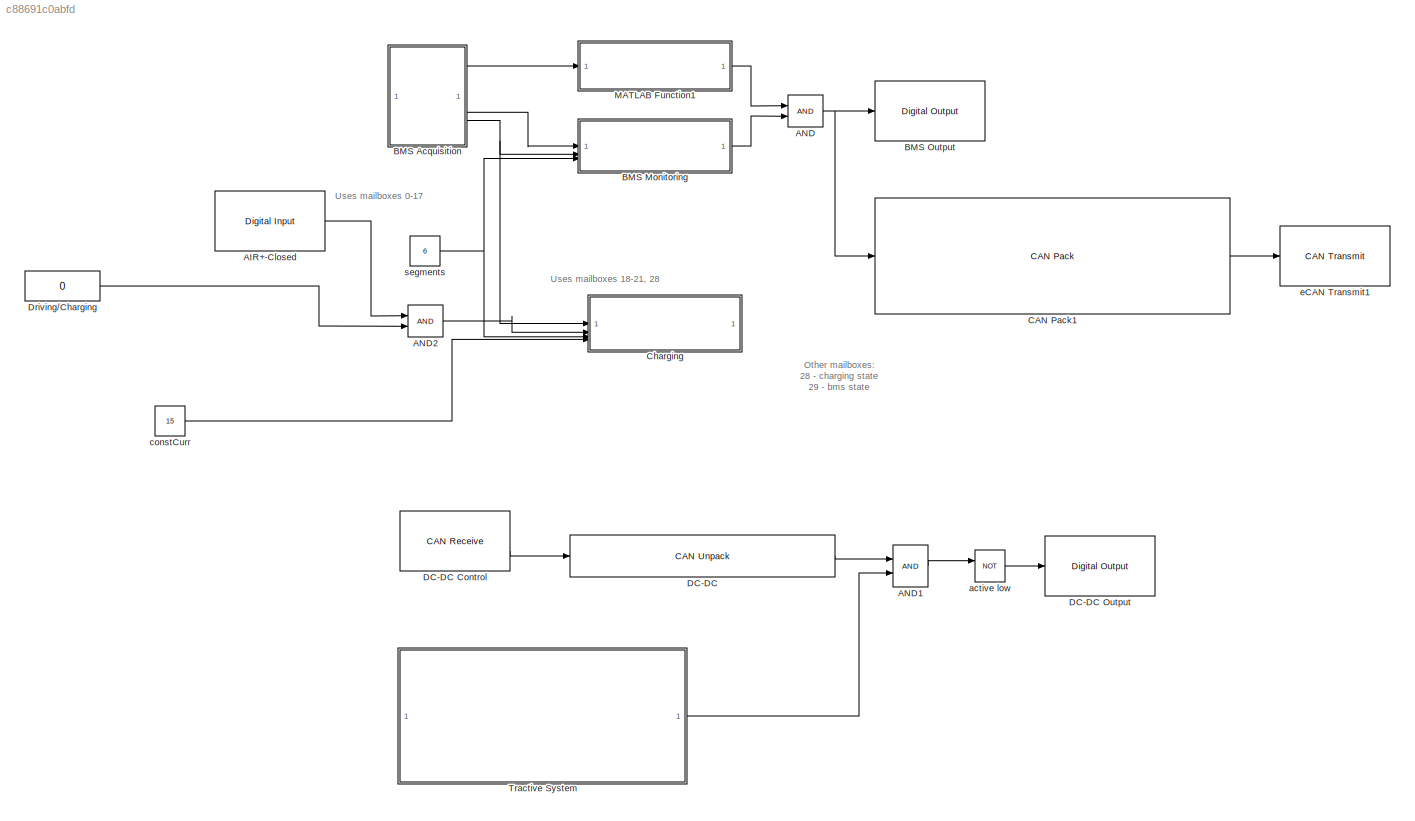
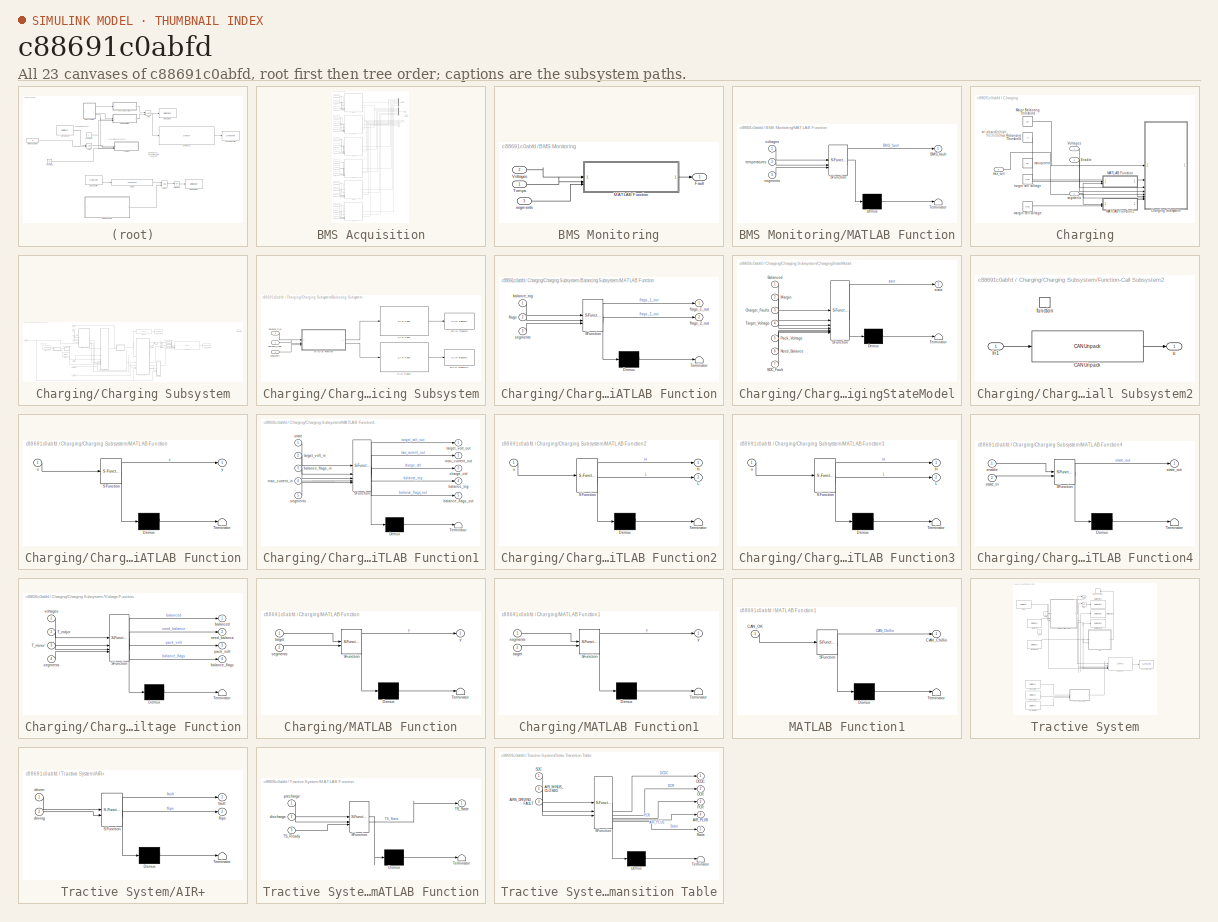
[diagram: thumbnail index - all 23 canvases of the model, root first then tree order]
MODEL slx_c88691c0abfd
KIND model
CONFIG AbsTol = auto
CONFIG EnableMultiTasking = off
CONFIG FixedStep = auto
CONFIG MaxStep = auto
CONFIG MinStep = auto
CONFIG RelTol = 1e-3
CONFIG SampleTimeConstraint = Unconstrained
CONFIG SolverName = FixedStepAuto
CONFIG StartTime = 0.0
CONFIG StopTime = 10.0
BLOCK [Reference] AIR+-Closed  REF=c2837xDlib/Digital Input
  SourceBlock = c2837xDlib/Digital Input
  SourceType = F2837x GPIO Digital Input
  UserDataPersistent = on
BLOCK [Logic] AND
  AllPortsSameDT = off
  IconShape = distinctive
  OutDataTypeStr = boolean
BLOCK [Logic] AND1
  AllPortsSameDT = off
  IconShape = distinctive
  OutDataTypeStr = boolean
BLOCK [Logic] AND2
  AllPortsSameDT = off
  IconShape = distinctive
  OutDataTypeStr = boolean
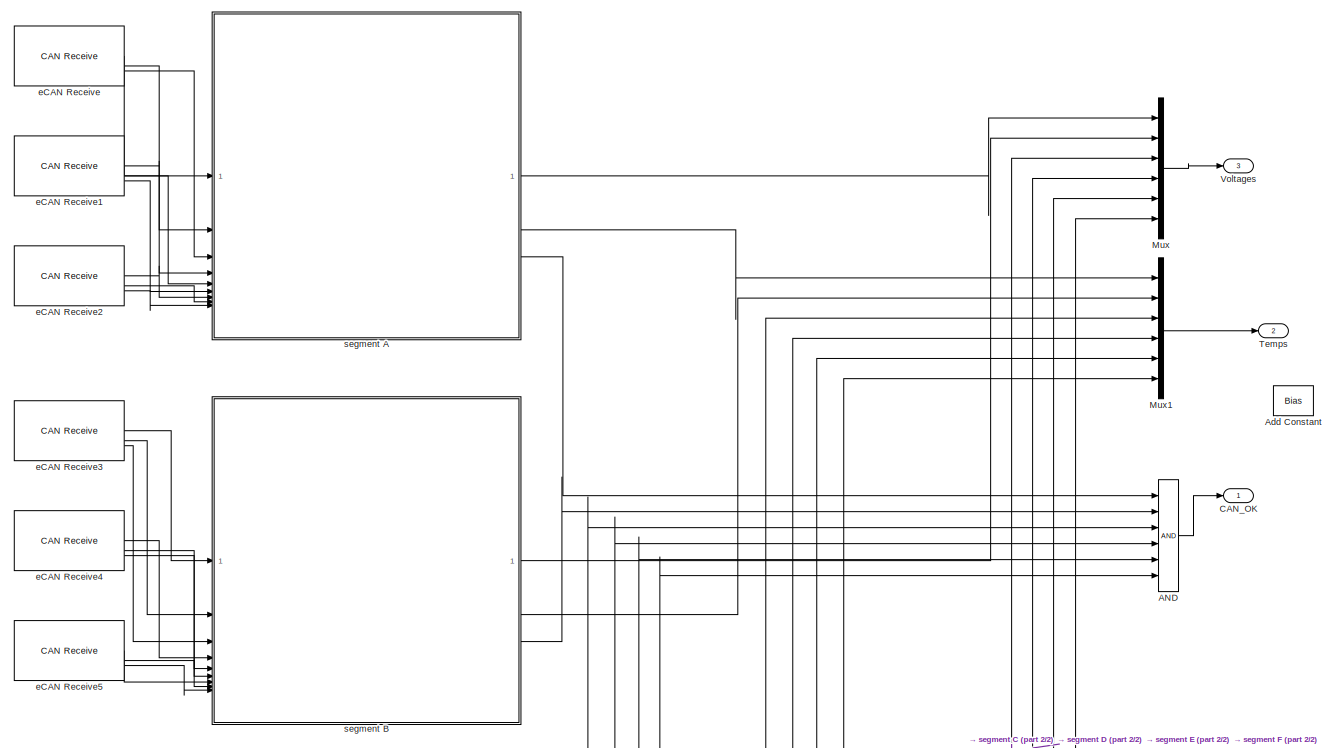
[diagram: BMS Acquisition - part 1/2, full width, top band]
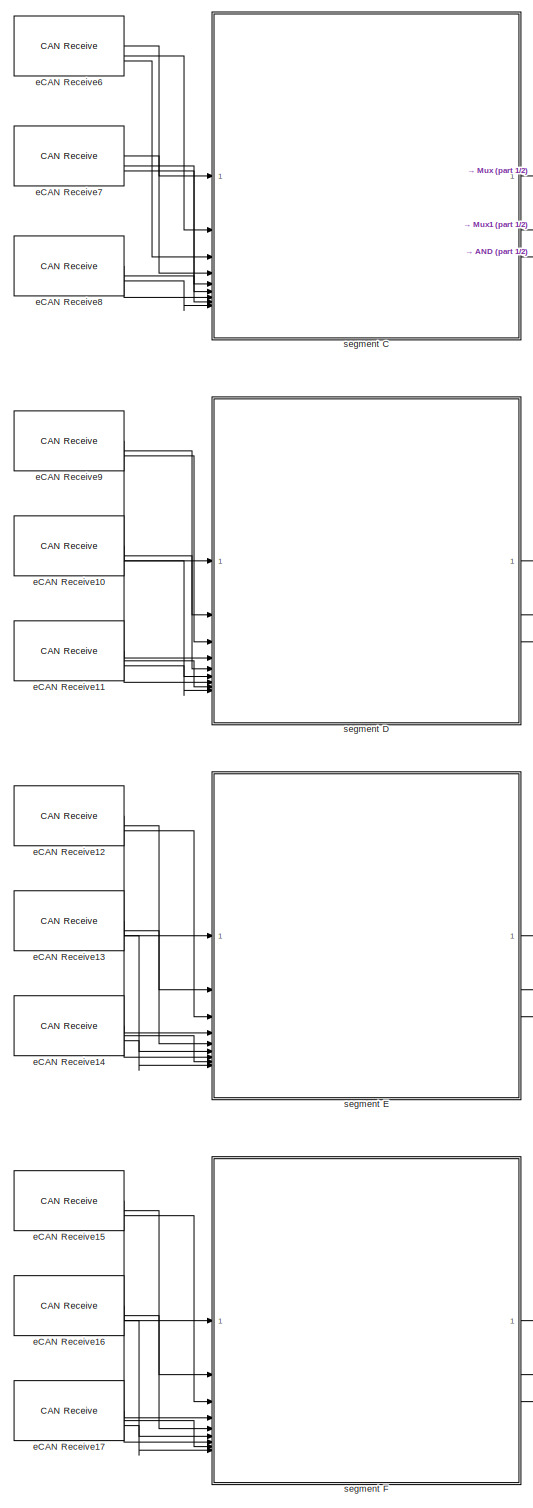
[diagram: BMS Acquisition - part 2/2, bottom left region]
BLOCK [SubSystem] BMS Acquisition
BLOCK [Outport] BMS Acquisition/ CAN_OK
BLOCK [Logic] BMS Acquisition/AND
  AllPortsSameDT = off
  IconShape = distinctive
  Inputs = 6
  OutDataTypeStr = boolean
BLOCK [Bias] BMS Acquisition/Add Constant
  Bias = [-0.25; -0.25; -0.25; -1; -0.5; -0.25; -0.5; -0.25; -0.75; -0.5; -0.5; 0; 2.25; 2.25; 2.25; 2.25; 2.25; 2.5; 2.25; 2.5; -1.25; 2.5; 2.25; 2.25; 0.5; 0.5; 0.75; 0.5; 0.75; 1.25; 0.75; 0.5; -1.25; 0.75; 0.75; 0.75; 1.75; 2.5; 2.75; 2.25; 2.5; 2.5; 2.25; 1.75; -2.5; 0; 2.5; 2.75; 1.5; 1.25; 1.25; 0.75; 1.25; 1.25; 1.25; 1.5; -0.75; 1.25; 1.25; 1.25; -0.25; 0; 0; 0; -0.25; -0.5; -0.5; -0.25; -0.75; -0...<+17ch>
  Commented = through
  SaturateOnIntegerOverflow = off
BLOCK [Mux] BMS Acquisition/Mux
  DisplayOption = bar
  Inputs = 6
BLOCK [Mux] BMS Acquisition/Mux1
  DisplayOption = bar
  Inputs = 6
BLOCK [Outport] BMS Acquisition/Temps
  Port = 2
BLOCK [Outport] BMS Acquisition/Voltages
  Port = 3
BLOCK [Reference] BMS Acquisition/eCAN Receive  REF=c280xlib/CAN Receive
  AttributesFormatString = ID: %<messageID>, MB: %<mailboxNo>
  SourceBlock = c280xlib/CAN Receive
  SourceType = C28x CAN Receive
BLOCK [Reference] BMS Acquisition/eCAN Receive1  REF=c280xlib/CAN Receive
  AttributesFormatString = ID: %<messageID>, MB: %<mailboxNo>
  SourceBlock = c280xlib/CAN Receive
  SourceType = C28x CAN Receive
BLOCK [Reference] BMS Acquisition/eCAN Receive10  REF=c280xlib/CAN Receive
  AttributesFormatString = ID: %<messageID>, MB: %<mailboxNo>
  SourceBlock = c280xlib/CAN Receive
  SourceType = C28x CAN Receive
BLOCK [Reference] BMS Acquisition/eCAN Receive11  REF=c280xlib/CAN Receive
  AttributesFormatString = ID: %<messageID>, MB: %<mailboxNo>
  SourceBlock = c280xlib/CAN Receive
  SourceType = C28x CAN Receive
BLOCK [Reference] BMS Acquisition/eCAN Receive12  REF=c280xlib/CAN Receive
  AttributesFormatString = ID: %<messageID>, MB: %<mailboxNo>
  SourceBlock = c280xlib/CAN Receive
  SourceType = C28x CAN Receive
BLOCK [Reference] BMS Acquisition/eCAN Receive13  REF=c280xlib/CAN Receive
  AttributesFormatString = ID: %<messageID>, MB: %<mailboxNo>
  SourceBlock = c280xlib/CAN Receive
  SourceType = C28x CAN Receive
BLOCK [Reference] BMS Acquisition/eCAN Receive14  REF=c280xlib/CAN Receive
  AttributesFormatString = ID: %<messageID>, MB: %<mailboxNo>
  SourceBlock = c280xlib/CAN Receive
  SourceType = C28x CAN Receive
BLOCK [Reference] BMS Acquisition/eCAN Receive15  REF=c280xlib/CAN Receive
  AttributesFormatString = ID: %<messageID>, MB: %<mailboxNo>
  SourceBlock = c280xlib/CAN Receive
  SourceType = C28x CAN Receive
BLOCK [Reference] BMS Acquisition/eCAN Receive16  REF=c280xlib/CAN Receive
  AttributesFormatString = ID: %<messageID>, MB: %<mailboxNo>
  SourceBlock = c280xlib/CAN Receive
  SourceType = C28x CAN Receive
BLOCK [Reference] BMS Acquisition/eCAN Receive17  REF=c280xlib/CAN Receive
  AttributesFormatString = ID: %<messageID>, MB: %<mailboxNo>
  SourceBlock = c280xlib/CAN Receive
  SourceType = C28x CAN Receive
BLOCK [Reference] BMS Acquisition/eCAN Receive2  REF=c280xlib/CAN Receive
  AttributesFormatString = ID: %<messageID>, MB: %<mailboxNo>
  SourceBlock = c280xlib/CAN Receive
  SourceType = C28x CAN Receive
BLOCK [Reference] BMS Acquisition/eCAN Receive3  REF=c280xlib/CAN Receive
  AttributesFormatString = ID: %<messageID>, MB: %<mailboxNo>
  SourceBlock = c280xlib/CAN Receive
  SourceType = C28x CAN Receive
BLOCK [Reference] BMS Acquisition/eCAN Receive4  REF=c280xlib/CAN Receive
  AttributesFormatString = ID: %<messageID>, MB: %<mailboxNo>
  SourceBlock = c280xlib/CAN Receive
  SourceType = C28x CAN Receive
BLOCK [Reference] BMS Acquisition/eCAN Receive5  REF=c280xlib/CAN Receive
  AttributesFormatString = ID: %<messageID>, MB: %<mailboxNo>
  SourceBlock = c280xlib/CAN Receive
  SourceType = C28x CAN Receive
BLOCK [Reference] BMS Acquisition/eCAN Receive6  REF=c280xlib/CAN Receive
  AttributesFormatString = ID: %<messageID>, MB: %<mailboxNo>
  SourceBlock = c280xlib/CAN Receive
  SourceType = C28x CAN Receive
BLOCK [Reference] BMS Acquisition/eCAN Receive7  REF=c280xlib/CAN Receive
  AttributesFormatString = ID: %<messageID>, MB: %<mailboxNo>
  SourceBlock = c280xlib/CAN Receive
  SourceType = C28x CAN Receive
BLOCK [Reference] BMS Acquisition/eCAN Receive8  REF=c280xlib/CAN Receive
  AttributesFormatString = ID: %<messageID>, MB: %<mailboxNo>
  SourceBlock = c280xlib/CAN Receive
  SourceType = C28x CAN Receive
BLOCK [Reference] BMS Acquisition/eCAN Receive9  REF=c280xlib/CAN Receive
  AttributesFormatString = ID: %<messageID>, MB: %<mailboxNo>
  SourceBlock = c280xlib/CAN Receive
  SourceType = C28x CAN Receive
BLOCK [SubSystem] BMS Acquisition/segment A
  ReferencedSubsystem = bms_segment
BLOCK [SubSystem] BMS Acquisition/segment B
  ReferencedSubsystem = bms_segment
BLOCK [SubSystem] BMS Acquisition/segment C
  ReferencedSubsystem = bms_segment
BLOCK [SubSystem] BMS Acquisition/segment D
  ReferencedSubsystem = bms_segment
BLOCK [SubSystem] BMS Acquisition/segment E
  ReferencedSubsystem = bms_segment
BLOCK [SubSystem] BMS Acquisition/segment F
  ReferencedSubsystem = bms_segment
BLOCK [SubSystem] BMS Monitoring
BLOCK [Outport] BMS Monitoring/Fault
BLOCK [SubSystem] BMS Monitoring/MATLAB Function
  ErrorFcn = Stateflow.Translate.translate
  PermitHierarchicalResolution = ExplicitOnly
  SFBlockType = MATLAB Function
  TreatAsAtomicUnit = on
BLOCK [Demux] BMS Monitoring/MATLAB Function/ Demux 
  Outputs = 1
BLOCK [S-Function] BMS Monitoring/MATLAB Function/ SFunction 
  EnableBusSupport = on
  FunctionName = sf_sfun
  PortCounts = [3 2]
  SFcnIsStateOwnerBlock = off
  SFunctionDeploymentMode = off
  Tag = Stateflow S-Function 9
BLOCK [Terminator] BMS Monitoring/MATLAB Function/ Terminator 
BLOCK [Outport] BMS Monitoring/MATLAB Function/BMS_fault
BLOCK [Inport] BMS Monitoring/MATLAB Function/segments
  Port = 3
BLOCK [Inport] BMS Monitoring/MATLAB Function/temperatures
  Port = 2
BLOCK [Inport] BMS Monitoring/MATLAB Function/voltages
BLOCK [Inport] BMS Monitoring/Temps
BLOCK [Inport] BMS Monitoring/Voltages
  Port = 2
BLOCK [Inport] BMS Monitoring/segments
  Port = 3
BLOCK [Reference] BMS Output  REF=c2837xDlib/Digital Output
  SourceBlock = c2837xDlib/Digital Output
  SourceType = F2837x GPIO Digital Output
  UserDataPersistent = on
BLOCK [Reference] CAN Pack1  REF=canmsglib/CAN Pack
  SourceBlock = canmsglib/CAN Pack
  SourceType = CAN Pack
BLOCK [SubSystem] Charging
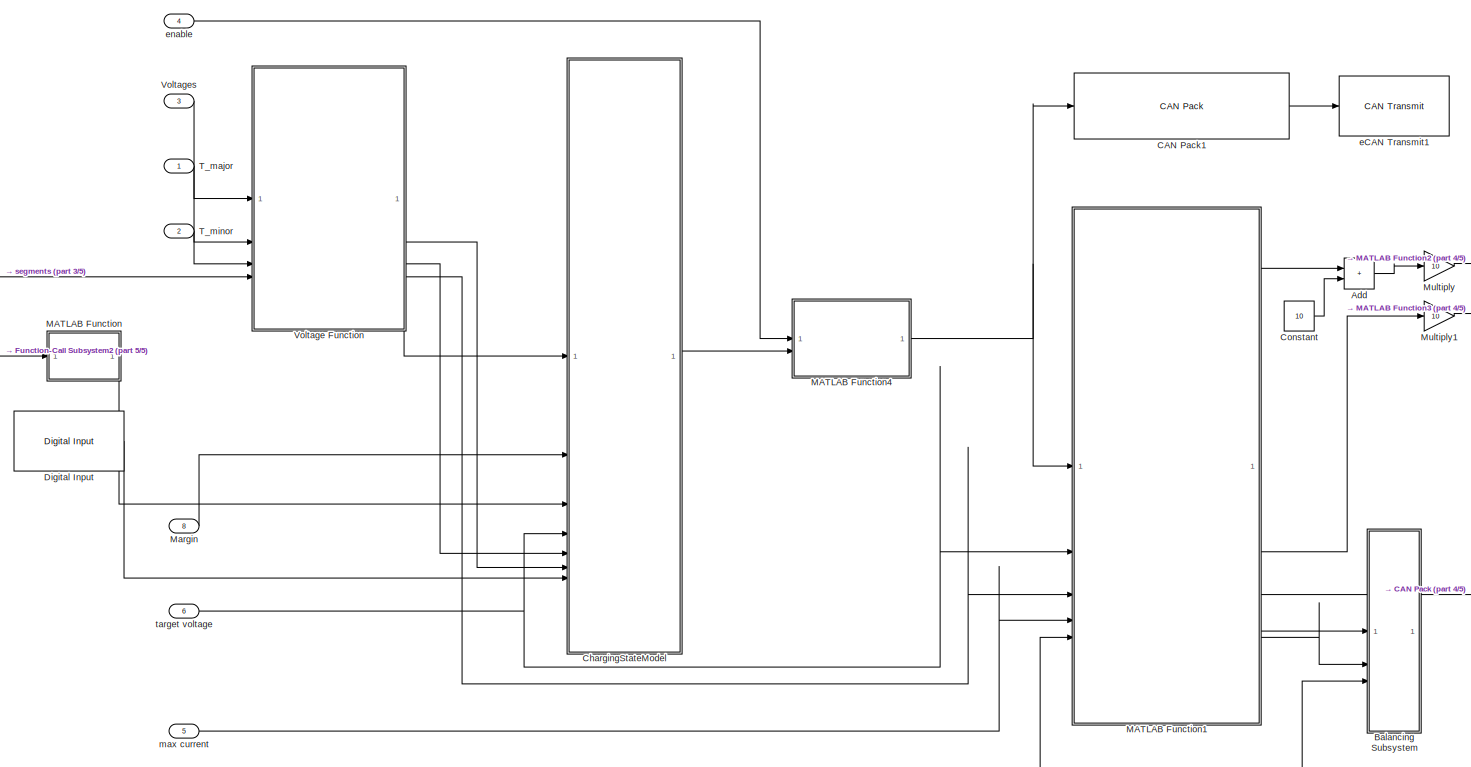
[diagram: Charging/Charging Subsystem - part 1/5, center side, full height]
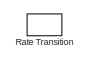
[diagram: Charging/Charging Subsystem - part 2/5, top right region]
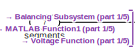
[diagram: Charging/Charging Subsystem - part 3/5, top left region]
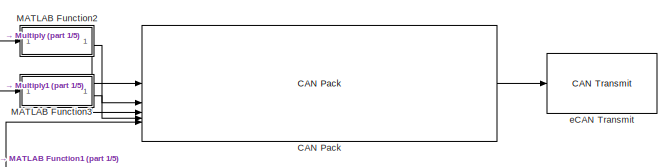
[diagram: Charging/Charging Subsystem - part 4/5, middle right region]
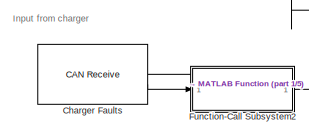
[diagram: Charging/Charging Subsystem - part 5/5, middle left region]
BLOCK [SubSystem] Charging/Charging Subsystem
BLOCK [Sum] Charging/Charging Subsystem/Add
  IconShape = rectangular
BLOCK [SubSystem] Charging/Charging Subsystem/Balancing Subsystem
  TreatAsAtomicUnit = on
BLOCK [Reference] Charging/Charging Subsystem/Balancing Subsystem/CAN Pack  REF=canmsglib/CAN Pack
  LibrarySourceBlock = c2000lib/Target Communication/CAN Pack
  SourceBlock = canmsglib/CAN Pack
  SourceType = CAN Pack
BLOCK [Reference] Charging/Charging Subsystem/Balancing Subsystem/CAN Pack1  REF=canmsglib/CAN Pack
  LibrarySourceBlock = c2000lib/Target Communication/CAN Pack
  SourceBlock = canmsglib/CAN Pack
  SourceType = CAN Pack
BLOCK [SubSystem] Charging/Charging Subsystem/Balancing Subsystem/MATLAB Function
  ErrorFcn = Stateflow.Translate.translate
  LibrarySourceBlock = simulink/User-Defined\nFunctions/MATLAB Function
  PermitHierarchicalResolution = ExplicitOnly
  SFBlockType = MATLAB Function
  TreatAsAtomicUnit = on
BLOCK [Demux] Charging/Charging Subsystem/Balancing Subsystem/MATLAB Function/ Demux 
  Outputs = 1
BLOCK [S-Function] Charging/Charging Subsystem/Balancing Subsystem/MATLAB Function/ SFunction 
  EnableBusSupport = on
  FunctionName = sf_sfun
  PortCounts = [3 3]
  SFcnIsStateOwnerBlock = off
  SFunctionDeploymentMode = off
  Tag = Stateflow S-Function 32
BLOCK [Terminator] Charging/Charging Subsystem/Balancing Subsystem/MATLAB Function/ Terminator 
BLOCK [Inport] Charging/Charging Subsystem/Balancing Subsystem/MATLAB Function/balance_trig
BLOCK [Inport] Charging/Charging Subsystem/Balancing Subsystem/MATLAB Function/flags
  Port = 2
BLOCK [Outport] Charging/Charging Subsystem/Balancing Subsystem/MATLAB Function/flags_1_out
BLOCK [Outport] Charging/Charging Subsystem/Balancing Subsystem/MATLAB Function/flags_2_out
  Port = 2
BLOCK [Inport] Charging/Charging Subsystem/Balancing Subsystem/MATLAB Function/segments
  Port = 3
BLOCK [Inport] Charging/Charging Subsystem/Balancing Subsystem/balance_flags
  Port = 2
BLOCK [Inport] Charging/Charging Subsystem/Balancing Subsystem/balance_trig
BLOCK [Reference] Charging/Charging Subsystem/Balancing Subsystem/eCAN Transmit  REF=c280xlib/CAN Transmit
  SourceBlock = c280xlib/CAN Transmit
  SourceType = C28x CAN Transmit
BLOCK [Reference] Charging/Charging Subsystem/Balancing Subsystem/eCAN Transmit1  REF=c280xlib/CAN Transmit
  SourceBlock = c280xlib/CAN Transmit
  SourceType = C28x CAN Transmit
BLOCK [Inport] Charging/Charging Subsystem/Balancing Subsystem/segments
  Port = 3
BLOCK [Reference] Charging/Charging Subsystem/CAN Pack  REF=canmsglib/CAN Pack
  SourceBlock = canmsglib/CAN Pack
  SourceType = CAN Pack
BLOCK [Reference] Charging/Charging Subsystem/CAN Pack1  REF=canmsglib/CAN Pack
  SourceBlock = canmsglib/CAN Pack
  SourceType = CAN Pack
BLOCK [Reference] Charging/Charging Subsystem/Charger Faults  REF=c280xlib/CAN Receive
  SourceBlock = c280xlib/CAN Receive
  SourceType = C28x CAN Receive
BLOCK [SubSystem] Charging/Charging Subsystem/ChargingStateModel
  ErrorFcn = Stateflow.Translate.translate
  PermitHierarchicalResolution = ExplicitOnly
  PortSchema = {"entries":[{"content":{"sides":[{"content":{"connectorIds":["In1","In6","In5","In3","In7","In2","In4"]},"type":"ConnectorPlacement.EquallySpacedRectSide","uuid":"e489c846-491e-4e82-9c5f-b669d7c96954"},{"content":{"connectorIds":["Out1"],"side":"RIGHT"},"type":"ConnectorPlacement.EquallySpacedRectSide","uuid":"cbb46da5-6eb6-44f9-baf3-a24ec6c96225"},{"content":{"connectorIds":[],"side":"TOP"},"type...<+420ch>
  RTWFcnNameOpts = Use subsystem name
  RTWFileNameOpts = Use subsystem name
  RTWSystemCode = Inline
  SFBlockType = Chart
  SystemSampleTime = 0.01
  TreatAsAtomicUnit = on
BLOCK [Demux] Charging/Charging Subsystem/ChargingStateModel/ Demux 
  Outputs = 1
BLOCK [S-Function] Charging/Charging Subsystem/ChargingStateModel/ SFunction 
  EnableBusSupport = on
  FunctionName = sf_sfun
  PortCounts = [7 2]
  SFcnIsStateOwnerBlock = off
  SFunctionDeploymentMode = off
  Tag = Stateflow S-Function 22
BLOCK [Terminator] Charging/Charging Subsystem/ChargingStateModel/ Terminator 
BLOCK [Inport] Charging/Charging Subsystem/ChargingStateModel/Balanced
BLOCK [Inport] Charging/Charging Subsystem/ChargingStateModel/Charger_Faults
  Port = 3
BLOCK [Inport] Charging/Charging Subsystem/ChargingStateModel/Margin
  Port = 2
BLOCK [Inport] Charging/Charging Subsystem/ChargingStateModel/Need_Balance
  Port = 6
BLOCK [Inport] Charging/Charging Subsystem/ChargingStateModel/Pack_Voltage
  Port = 5
BLOCK [Inport] Charging/Charging Subsystem/ChargingStateModel/SDC_Fault
  Port = 7
BLOCK [Inport] Charging/Charging Subsystem/ChargingStateModel/Target_Voltage
  Port = 4
BLOCK [Outport] Charging/Charging Subsystem/ChargingStateModel/state
BLOCK [Constant] Charging/Charging Subsystem/Constant
  Value = 10
BLOCK [Reference] Charging/Charging Subsystem/Digital Input  REF=c2837xDlib/Digital Input
  SourceBlock = c2837xDlib/Digital Input
  SourceType = F2837x GPIO Digital Input
  UserDataPersistent = on
BLOCK [SubSystem] Charging/Charging Subsystem/Function-Call Subsystem2
  TreatAsAtomicUnit = on
BLOCK [Reference] Charging/Charging Subsystem/Function-Call Subsystem2/CAN Unpack  REF=canmsglib/CAN Unpack
  SourceBlock = canmsglib/CAN Unpack
  SourceType = CAN Unpack
BLOCK [Inport] Charging/Charging Subsystem/Function-Call Subsystem2/In1
BLOCK [TriggerPort] Charging/Charging Subsystem/Function-Call Subsystem2/function
  StatesWhenEnabling = held
  TriggerType = function-call
  VariantControl = (inherit)
BLOCK [Outport] Charging/Charging Subsystem/Function-Call Subsystem2/u
BLOCK [SubSystem] Charging/Charging Subsystem/MATLAB Function
  ErrorFcn = Stateflow.Translate.translate
  PermitHierarchicalResolution = ExplicitOnly
  SFBlockType = MATLAB Function
  TreatAsAtomicUnit = on
BLOCK [Demux] Charging/Charging Subsystem/MATLAB Function/ Demux 
  Outputs = 1
BLOCK [S-Function] Charging/Charging Subsystem/MATLAB Function/ SFunction 
  EnableBusSupport = on
  FunctionName = sf_sfun
  PortCounts = [1 2]
  SFcnIsStateOwnerBlock = off
  SFunctionDeploymentMode = off
  Tag = Stateflow S-Function 26
BLOCK [Terminator] Charging/Charging Subsystem/MATLAB Function/ Terminator 
BLOCK [Inport] Charging/Charging Subsystem/MATLAB Function/u
BLOCK [Outport] Charging/Charging Subsystem/MATLAB Function/y
BLOCK [SubSystem] Charging/Charging Subsystem/MATLAB Function1
  ErrorFcn = Stateflow.Translate.translate
  LibrarySourceBlock = simulink/User-Defined\nFunctions/MATLAB Function
  PermitHierarchicalResolution = ExplicitOnly
  SFBlockType = MATLAB Function
  TreatAsAtomicUnit = on
BLOCK [Demux] Charging/Charging Subsystem/MATLAB Function1/ Demux 
  Outputs = 1
BLOCK [S-Function] Charging/Charging Subsystem/MATLAB Function1/ SFunction 
  EnableBusSupport = on
  FunctionName = sf_sfun
  PortCounts = [5 6]
  SFcnIsStateOwnerBlock = off
  SFunctionDeploymentMode = off
  Tag = Stateflow S-Function 29
BLOCK [Terminator] Charging/Charging Subsystem/MATLAB Function1/ Terminator 
BLOCK [Inport] Charging/Charging Subsystem/MATLAB Function1/balance_flags_in
  Port = 3
BLOCK [Outport] Charging/Charging Subsystem/MATLAB Function1/balance_flags_out
  Port = 5
BLOCK [Outport] Charging/Charging Subsystem/MATLAB Function1/balance_trig
  Port = 4
BLOCK [Outport] Charging/Charging Subsystem/MATLAB Function1/charge_ctrl
  Port = 3
BLOCK [Inport] Charging/Charging Subsystem/MATLAB Function1/max_current_in
  Port = 4
BLOCK [Outport] Charging/Charging Subsystem/MATLAB Function1/max_current_out
  Port = 2
BLOCK [Inport] Charging/Charging Subsystem/MATLAB Function1/segments
  Port = 5
BLOCK [Inport] Charging/Charging Subsystem/MATLAB Function1/state
BLOCK [Inport] Charging/Charging Subsystem/MATLAB Function1/target_volt_in
  Port = 2
BLOCK [Outport] Charging/Charging Subsystem/MATLAB Function1/target_volt_out
BLOCK [SubSystem] Charging/Charging Subsystem/MATLAB Function2
  ErrorFcn = Stateflow.Translate.translate
  PermitHierarchicalResolution = ExplicitOnly
  SFBlockType = MATLAB Function
  TreatAsAtomicUnit = on
BLOCK [Demux] Charging/Charging Subsystem/MATLAB Function2/ Demux 
  Outputs = 1
BLOCK [S-Function] Charging/Charging Subsystem/MATLAB Function2/ SFunction 
  EnableBusSupport = on
  FunctionName = sf_sfun
  PortCounts = [1 3]
  SFcnIsStateOwnerBlock = off
  SFunctionDeploymentMode = off
  Tag = Stateflow S-Function 30
BLOCK [Terminator] Charging/Charging Subsystem/MATLAB Function2/ Terminator 
BLOCK [Outport] Charging/Charging Subsystem/MATLAB Function2/H
BLOCK [Outport] Charging/Charging Subsystem/MATLAB Function2/L
  Port = 2
BLOCK [Inport] Charging/Charging Subsystem/MATLAB Function2/u
BLOCK [SubSystem] Charging/Charging Subsystem/MATLAB Function3
  ErrorFcn = Stateflow.Translate.translate
  PermitHierarchicalResolution = ExplicitOnly
  SFBlockType = MATLAB Function
  TreatAsAtomicUnit = on
BLOCK [Demux] Charging/Charging Subsystem/MATLAB Function3/ Demux 
  Outputs = 1
BLOCK [S-Function] Charging/Charging Subsystem/MATLAB Function3/ SFunction 
  EnableBusSupport = on
  FunctionName = sf_sfun
  PortCounts = [1 3]
  SFcnIsStateOwnerBlock = off
  SFunctionDeploymentMode = off
  Tag = Stateflow S-Function 31
BLOCK [Terminator] Charging/Charging Subsystem/MATLAB Function3/ Terminator 
BLOCK [Outport] Charging/Charging Subsystem/MATLAB Function3/H
BLOCK [Outport] Charging/Charging Subsystem/MATLAB Function3/L
  Port = 2
BLOCK [Inport] Charging/Charging Subsystem/MATLAB Function3/u
BLOCK [SubSystem] Charging/Charging Subsystem/MATLAB Function4
  ErrorFcn = Stateflow.Translate.translate
  LibrarySourceBlock = simulink/User-Defined\nFunctions/MATLAB Function
  PermitHierarchicalResolution = ExplicitOnly
  SFBlockType = MATLAB Function
  TreatAsAtomicUnit = on
BLOCK [Demux] Charging/Charging Subsystem/MATLAB Function4/ Demux 
  Outputs = 1
BLOCK [S-Function] Charging/Charging Subsystem/MATLAB Function4/ SFunction 
  EnableBusSupport = on
  FunctionName = sf_sfun
  PortCounts = [2 2]
  SFcnIsStateOwnerBlock = off
  SFunctionDeploymentMode = off
  Tag = Stateflow S-Function 24
BLOCK [Terminator] Charging/Charging Subsystem/MATLAB Function4/ Terminator 
BLOCK [Inport] Charging/Charging Subsystem/MATLAB Function4/enable
BLOCK [Inport] Charging/Charging Subsystem/MATLAB Function4/state_in
  Port = 2
BLOCK [Outport] Charging/Charging Subsystem/MATLAB Function4/state_out
BLOCK [Inport] Charging/Charging Subsystem/Margin
  Port = 8
BLOCK [Gain] Charging/Charging Subsystem/Multiply
  Gain = 10
BLOCK [Gain] Charging/Charging Subsystem/Multiply1
  Gain = 10
BLOCK [RateTransition] Charging/Charging Subsystem/Rate Transition
  Commented = on
  OutPortSampleTime = .5
BLOCK [Inport] Charging/Charging Subsystem/T_major
BLOCK [Inport] Charging/Charging Subsystem/T_minor
  Port = 2
BLOCK [SubSystem] Charging/Charging Subsystem/Voltage Function
  ErrorFcn = Stateflow.Translate.translate
  PermitHierarchicalResolution = ExplicitOnly
  SFBlockType = MATLAB Function
  TreatAsAtomicUnit = on
BLOCK [Demux] Charging/Charging Subsystem/Voltage Function/ Demux 
  Outputs = 1
BLOCK [S-Function] Charging/Charging Subsystem/Voltage Function/ SFunction 
  EnableBusSupport = on
  FunctionName = sf_sfun
  PortCounts = [4 5]
  SFcnIsStateOwnerBlock = off
  SFunctionDeploymentMode = off
  Tag = Stateflow S-Function 23
BLOCK [Terminator] Charging/Charging Subsystem/Voltage Function/ Terminator 
BLOCK [Inport] Charging/Charging Subsystem/Voltage Function/T_major
  Port = 2
BLOCK [Inport] Charging/Charging Subsystem/Voltage Function/T_minor
  Port = 3
BLOCK [Outport] Charging/Charging Subsystem/Voltage Function/balance_flags
  Port = 4
BLOCK [Outport] Charging/Charging Subsystem/Voltage Function/balanced
BLOCK [Outport] Charging/Charging Subsystem/Voltage Function/need_balance
  Port = 2
BLOCK [Outport] Charging/Charging Subsystem/Voltage Function/pack_volt
  Port = 3
BLOCK [Inport] Charging/Charging Subsystem/Voltage Function/segments
  Port = 4
BLOCK [Inport] Charging/Charging Subsystem/Voltage Function/voltages
BLOCK [Inport] Charging/Charging Subsystem/Voltages
  Port = 3
BLOCK [Reference] Charging/Charging Subsystem/eCAN Transmit  REF=c280xlib/CAN Transmit
  SourceBlock = c280xlib/CAN Transmit
  SourceType = C28x CAN Transmit
BLOCK [Reference] Charging/Charging Subsystem/eCAN Transmit1  REF=c280xlib/CAN Transmit
  SourceBlock = c280xlib/CAN Transmit
  SourceType = C28x CAN Transmit
BLOCK [Inport] Charging/Charging Subsystem/enable
  Port = 4
BLOCK [Inport] Charging/Charging Subsystem/max current
  Port = 5
BLOCK [Inport] Charging/Charging Subsystem/segments
  Port = 7
BLOCK [Inport] Charging/Charging Subsystem/target voltage
  Port = 6
BLOCK [Inport] Charging/Enable
  Port = 2
BLOCK [SubSystem] Charging/MATLAB Function
  ErrorFcn = Stateflow.Translate.translate
  LibrarySourceBlock = simulink/User-Defined\nFunctions/MATLAB Function
  PermitHierarchicalResolution = ExplicitOnly
  SFBlockType = MATLAB Function
  TreatAsAtomicUnit = on
BLOCK [Demux] Charging/MATLAB Function/ Demux 
  Outputs = 1
BLOCK [S-Function] Charging/MATLAB Function/ SFunction 
  EnableBusSupport = on
  FunctionName = sf_sfun
  PortCounts = [2 2]
  SFcnIsStateOwnerBlock = off
  SFunctionDeploymentMode = off
  Tag = Stateflow S-Function 27
BLOCK [Terminator] Charging/MATLAB Function/ Terminator 
BLOCK [Inport] Charging/MATLAB Function/segments
  Port = 2
BLOCK [Inport] Charging/MATLAB Function/target
BLOCK [Outport] Charging/MATLAB Function/y
BLOCK [SubSystem] Charging/MATLAB Function1
  ErrorFcn = Stateflow.Translate.translate
  LibrarySourceBlock = simulink/User-Defined\nFunctions/MATLAB Function
  PermitHierarchicalResolution = ExplicitOnly
  SFBlockType = MATLAB Function
  TreatAsAtomicUnit = on
BLOCK [Demux] Charging/MATLAB Function1/ Demux 
  Outputs = 1
BLOCK [S-Function] Charging/MATLAB Function1/ SFunction 
  EnableBusSupport = on
  FunctionName = sf_sfun
  PortCounts = [2 2]
  SFcnIsStateOwnerBlock = off
  SFunctionDeploymentMode = off
  Tag = Stateflow S-Function 28
BLOCK [Terminator] Charging/MATLAB Function1/ Terminator 
BLOCK [Inport] Charging/MATLAB Function1/segments
BLOCK [Inport] Charging/MATLAB Function1/target
  Port = 2
BLOCK [Outport] Charging/MATLAB Function1/y
BLOCK [Constant] Charging/Major Balancing Threshold
  Value = 10
BLOCK [Constant] Charging/Minor Balancing Threshold
  Value = .2
BLOCK [Inport] Charging/Voltages
BLOCK [Constant] Charging/margin cell voltage
  Value = 0.02
BLOCK [Constant] Charging/max current
  Commented = on
  Value = 10
BLOCK [Inport] Charging/max_curr
  Port = 4
BLOCK [Inport] Charging/segments
  Port = 3
BLOCK [Constant] Charging/target cell voltage
  Value = 4.25
BLOCK [Reference] DC-DC  REF=canmsglib/CAN Unpack
  SourceBlock = canmsglib/CAN Unpack
  SourceType = CAN Unpack
BLOCK [Reference] DC-DC Control  REF=c280xlib/CAN Receive
  SourceBlock = c280xlib/CAN Receive
  SourceType = C28x CAN Receive
BLOCK [Reference] DC-DC Output  REF=c2837xDlib/Digital Output
  SourceBlock = c2837xDlib/Digital Output
  SourceType = F2837x GPIO Digital Output
  UserDataPersistent = on
BLOCK [Constant] Driving//Charging
  AttributesFormatString = 0 -> Driving\n1 -> Charging
  Value = 0
BLOCK [SubSystem] MATLAB Function1
  ErrorFcn = Stateflow.Translate.translate
  LibrarySourceBlock = simulink/User-Defined\nFunctions/MATLAB Function
  PermitHierarchicalResolution = ExplicitOnly
  SFBlockType = MATLAB Function
  TreatAsAtomicUnit = on
BLOCK [Demux] MATLAB Function1/ Demux 
  Outputs = 1
BLOCK [S-Function] MATLAB Function1/ SFunction 
  EnableBusSupport = on
  FunctionName = sf_sfun
  PortCounts = [1 2]
  SFcnIsStateOwnerBlock = off
  SFunctionDeploymentMode = off
  Tag = Stateflow S-Function 25
BLOCK [Terminator] MATLAB Function1/ Terminator 
BLOCK [Outport] MATLAB Function1/CAN_Chillin
BLOCK [Inport] MATLAB Function1/CAN_OK
BLOCK [SubSystem] Tractive System
BLOCK [SubSystem] Tractive System/AIR+
  Commented = on
  ErrorFcn = Stateflow.Translate.translate
  PermitHierarchicalResolution = ExplicitOnly
  PortSchema = {"entries":[{"content":{"sides":[{"content":{"connectorIds":["In2","In1"]},"type":"ConnectorPlacement.EquallySpacedRectSide","uuid":"9dd53fd1-3ecf-4257-a5bf-55d9d7025cab"},{"content":{"connectorIds":["Out1","Out2"],"side":"RIGHT"},"type":"ConnectorPlacement.EquallySpacedRectSide","uuid":"25af85f6-47e3-4235-93a7-84041689babd"},{"content":{"side":"TOP"},"type":"ConnectorPlacement.EquallySpacedRectSi...<+235ch>
  SFBlockType = Chart
  TreatAsAtomicUnit = on
BLOCK [Reference] Tractive System/AIR+-Closed  REF=c2837xDlib/Digital Input
  SourceBlock = c2837xDlib/Digital Input
  SourceType = F2837x GPIO Digital Input
  UserDataPersistent = on
BLOCK [Demux] Tractive System/AIR+/ Demux 
  Outputs = 1
BLOCK [S-Function] Tractive System/AIR+/ SFunction 
  EnableBusSupport = off
  FunctionName = sf_sfun
  PortCounts = [2 3]
  SFcnIsStateOwnerBlock = off
  SFunctionDeploymentMode = off
  Tag = Stateflow S-Function 3
BLOCK [Terminator] Tractive System/AIR+/ Terminator 
BLOCK [Inport] Tractive System/AIR+/driven
BLOCK [Inport] Tractive System/AIR+/driving
  Port = 2
BLOCK [Outport] Tractive System/AIR+/fault
BLOCK [Outport] Tractive System/AIR+/flips
  Port = 2
BLOCK [Reference] Tractive System/AIR--Closed  REF=c2837xDlib/Digital Input
  SourceBlock = c2837xDlib/Digital Input
  SourceType = F2837x GPIO Digital Input
  UserDataPersistent = on
BLOCK [Reference] Tractive System/CAN Pack  REF=canmsglib/CAN Pack
  SourceBlock = canmsglib/CAN Pack
  SourceType = CAN Pack
BLOCK [Outport] Tractive System/DC-DC
BLOCK [Delay] Tractive System/Delay One Step
  Commented = on
  DelayLength = 1
  InputPortMap = u0
  NameLocation = top
BLOCK [Reference] Tractive System/Digital Output  REF=c2837xDlib/Digital Output
  SourceBlock = c2837xDlib/Digital Output
  SourceType = F2837x GPIO Digital Output
  UserDataPersistent = on
BLOCK [Reference] Tractive System/Digital Output1  REF=c2837xDlib/Digital Output
  SourceBlock = c2837xDlib/Digital Output
  SourceType = F2837x GPIO Digital Output
  UserDataPersistent = on
BLOCK [Reference] Tractive System/Digital Output2  REF=c2837xDlib/Digital Output
  SourceBlock = c2837xDlib/Digital Output
  SourceType = F2837x GPIO Digital Output
  UserDataPersistent = on
BLOCK [Reference] Tractive System/Discharge  REF=c2837xDlib/Digital Input
  SourceBlock = c2837xDlib/Digital Input
  SourceType = F2837x GPIO Digital Input
  UserDataPersistent = on
BLOCK [SubSystem] Tractive System/MATLAB Function
  ErrorFcn = Stateflow.Translate.translate
  PermitHierarchicalResolution = ExplicitOnly
  SFBlockType = MATLAB Function
  TreatAsAtomicUnit = on
BLOCK [Demux] Tractive System/MATLAB Function/ Demux 
  Outputs = 1
BLOCK [S-Function] Tractive System/MATLAB Function/ SFunction 
  EnableBusSupport = on
  FunctionName = sf_sfun
  PortCounts = [3 2]
  SFcnIsStateOwnerBlock = off
  SFunctionDeploymentMode = off
  Tag = Stateflow S-Function 12
BLOCK [Terminator] Tractive System/MATLAB Function/ Terminator 
BLOCK [Inport] Tractive System/MATLAB Function/TS_Ready
  Port = 3
BLOCK [Outport] Tractive System/MATLAB Function/TS_State
BLOCK [Inport] Tractive System/MATLAB Function/discharge
  Port = 2
BLOCK [Inport] Tractive System/MATLAB Function/precharge
BLOCK [Logic] Tractive System/NOT
  AllPortsSameDT = off
  IconShape = distinctive
  Operator = NOT
  OutDataTypeStr = boolean
BLOCK [Constant] Tractive System/One
  Commented = on
  OutDataTypeStr = Inherit: Inherit via back propagation
BLOCK [Reference] Tractive System/Precharge  REF=c2837xDlib/Digital Input
  SourceBlock = c2837xDlib/Digital Input
  SourceType = F2837x GPIO Digital Input
  UserDataPersistent = on
BLOCK [Reference] Tractive System/SDC  REF=c2837xDlib/Digital Input
  SourceBlock = c2837xDlib/Digital Input
  SourceType = F2837x GPIO Digital Input
  UserDataPersistent = on
BLOCK [SubSystem] Tractive System/State Transition Table
  ErrorFcn = Stateflow.Translate.translate
  PermitHierarchicalResolution = ExplicitOnly
  PortSchema = {"entries":[{"content":{"sides":[{"content":{"connectorIds":["In1","In3","In2"]},"type":"ConnectorPlacement.EquallySpacedRectSide","uuid":"588cd4c7-dba0-48db-9820-dba2fd8491b3"},{"content":{"connectorIds":["Out1","Out2","Out3","Out4","Out5"],"side":"RIGHT"},"type":"ConnectorPlacement.EquallySpacedRectSide","uuid":"afcbba97-d13d-4a71-ab90-836a8403ff14"},{"content":{"side":"TOP"},"type":"ConnectorPl...<+262ch>
  SFBlockType = State Transition Table
  TreatAsAtomicUnit = on
BLOCK [Demux] Tractive System/State Transition Table/ Demux 
  Outputs = 1
BLOCK [S-Function] Tractive System/State Transition Table/ SFunction 
  EnableBusSupport = on
  FunctionName = sf_sfun
  PortCounts = [3 6]
  SFcnIsStateOwnerBlock = off
  SFunctionDeploymentMode = off
  Tag = Stateflow S-Function 4
BLOCK [Terminator] Tractive System/State Transition Table/ Terminator 
BLOCK [Inport] Tractive System/State Transition Table/AIRS_DRIVING_FAULT
  Port = 3
BLOCK [Inport] Tractive System/State Transition Table/AIR_MINUS_CLOSED
  Port = 2
BLOCK [Outport] Tractive System/State Transition Table/AIR_PLUS
  Port = 4
BLOCK [Outport] Tractive System/State Transition Table/DCDC
BLOCK [Outport] Tractive System/State Transition Table/DCR
  Port = 2
BLOCK [Outport] Tractive System/State Transition Table/PCR
  Port = 3
BLOCK [Inport] Tractive System/State Transition Table/SDC
BLOCK [Outport] Tractive System/State Transition Table/State
  Port = 5
BLOCK [Reference] Tractive System/TS_Ready  REF=c2837xDlib/Digital Input
  SourceBlock = c2837xDlib/Digital Input
  SourceType = F2837x GPIO Digital Input
  UserDataPersistent = on
BLOCK [Constant] Tractive System/Zero
  OutDataTypeStr = Inherit: Inherit via back propagation
  Value = 0
BLOCK [Reference] Tractive System/eCAN Transmit  REF=c280xlib/CAN Transmit
  SourceBlock = c280xlib/CAN Transmit
  SourceType = C28x CAN Transmit
BLOCK [Logic] active low
  AllPortsSameDT = off
  IconShape = distinctive
  Operator = NOT
  OutDataTypeStr = boolean
BLOCK [Constant] constCurr
  Value = 15
BLOCK [Reference] eCAN Transmit1  REF=c280xlib/CAN Transmit
  SourceBlock = c280xlib/CAN Transmit
  SourceType = C28x CAN Transmit
BLOCK [Constant] segments
  Value = 6
ANNOTATION (root): Other mailboxes: 28 - charging state 29 - bms state
ANNOTATION (root): Uses mailboxes 0-17
ANNOTATION (root): Uses mailboxes 18-21, 28
ANNOTATION Charging: set absurdly high 9/23/2024
ANNOTATION Charging/Charging Subsystem: Input from charger
ANNOTATION Tractive System: normally closed
LINE AIR+-Closed:1 -> AND2:1
LINE AND1:1 -> active low:1
LINE AND2:1 -> Charging:2
NET AND:1 -> BMS Output:1, CAN Pack1:1
LINE BMS Acquisition/AND:1 -> BMS Acquisition/ CAN_OK:1
LINE BMS Acquisition/Mux1:1 -> BMS Acquisition/Temps:1
LINE BMS Acquisition/Mux:1 -> BMS Acquisition/Voltages:1
LINE BMS Acquisition/eCAN Receive10:1 -> BMS Acquisition/segment D:4
LINE BMS Acquisition/eCAN Receive10:2 -> BMS Acquisition/segment D:5
LINE BMS Acquisition/eCAN Receive10:3 -> BMS Acquisition/segment D:6
LINE BMS Acquisition/eCAN Receive11:1 -> BMS Acquisition/segment D:7
LINE BMS Acquisition/eCAN Receive11:2 -> BMS Acquisition/segment D:8
LINE BMS Acquisition/eCAN Receive11:3 -> BMS Acquisition/segment D:9
LINE BMS Acquisition/eCAN Receive12:1 -> BMS Acquisition/segment E:1
LINE BMS Acquisition/eCAN Receive12:2 -> BMS Acquisition/segment E:2
LINE BMS Acquisition/eCAN Receive12:3 -> BMS Acquisition/segment E:3
LINE BMS Acquisition/eCAN Receive13:1 -> BMS Acquisition/segment E:4
LINE BMS Acquisition/eCAN Receive13:2 -> BMS Acquisition/segment E:5
LINE BMS Acquisition/eCAN Receive13:3 -> BMS Acquisition/segment E:6
LINE BMS Acquisition/eCAN Receive14:1 -> BMS Acquisition/segment E:7
LINE BMS Acquisition/eCAN Receive14:2 -> BMS Acquisition/segment E:8
LINE BMS Acquisition/eCAN Receive14:3 -> BMS Acquisition/segment E:9
LINE BMS Acquisition/eCAN Receive15:1 -> BMS Acquisition/segment F:1
LINE BMS Acquisition/eCAN Receive15:2 -> BMS Acquisition/segment F:2
LINE BMS Acquisition/eCAN Receive15:3 -> BMS Acquisition/segment F:3
LINE BMS Acquisition/eCAN Receive16:1 -> BMS Acquisition/segment F:4
LINE BMS Acquisition/eCAN Receive16:2 -> BMS Acquisition/segment F:5
LINE BMS Acquisition/eCAN Receive16:3 -> BMS Acquisition/segment F:6
LINE BMS Acquisition/eCAN Receive17:1 -> BMS Acquisition/segment F:7
LINE BMS Acquisition/eCAN Receive17:2 -> BMS Acquisition/segment F:8
LINE BMS Acquisition/eCAN Receive17:3 -> BMS Acquisition/segment F:9
LINE BMS Acquisition/eCAN Receive1:1 -> BMS Acquisition/segment A:4
LINE BMS Acquisition/eCAN Receive1:2 -> BMS Acquisition/segment A:5
LINE BMS Acquisition/eCAN Receive1:3 -> BMS Acquisition/segment A:6
LINE BMS Acquisition/eCAN Receive2:1 -> BMS Acquisition/segment A:7
LINE BMS Acquisition/eCAN Receive2:2 -> BMS Acquisition/segment A:8
LINE BMS Acquisition/eCAN Receive2:3 -> BMS Acquisition/segment A:9
LINE BMS Acquisition/eCAN Receive3:1 -> BMS Acquisition/segment B:1
LINE BMS Acquisition/eCAN Receive3:2 -> BMS Acquisition/segment B:2
LINE BMS Acquisition/eCAN Receive3:3 -> BMS Acquisition/segment B:3
LINE BMS Acquisition/eCAN Receive4:1 -> BMS Acquisition/segment B:4
LINE BMS Acquisition/eCAN Receive4:2 -> BMS Acquisition/segment B:5
LINE BMS Acquisition/eCAN Receive4:3 -> BMS Acquisition/segment B:6
LINE BMS Acquisition/eCAN Receive5:1 -> BMS Acquisition/segment B:7
LINE BMS Acquisition/eCAN Receive5:2 -> BMS Acquisition/segment B:8
LINE BMS Acquisition/eCAN Receive5:3 -> BMS Acquisition/segment B:9
LINE BMS Acquisition/eCAN Receive6:1 -> BMS Acquisition/segment C:1
LINE BMS Acquisition/eCAN Receive6:2 -> BMS Acquisition/segment C:2
LINE BMS Acquisition/eCAN Receive6:3 -> BMS Acquisition/segment C:3
LINE BMS Acquisition/eCAN Receive7:1 -> BMS Acquisition/segment C:4
LINE BMS Acquisition/eCAN Receive7:2 -> BMS Acquisition/segment C:5
LINE BMS Acquisition/eCAN Receive7:3 -> BMS Acquisition/segment C:6
LINE BMS Acquisition/eCAN Receive8:1 -> BMS Acquisition/segment C:7
LINE BMS Acquisition/eCAN Receive8:2 -> BMS Acquisition/segment C:8
LINE BMS Acquisition/eCAN Receive8:3 -> BMS Acquisition/segment C:9
LINE BMS Acquisition/eCAN Receive9:1 -> BMS Acquisition/segment D:1
LINE BMS Acquisition/eCAN Receive9:2 -> BMS Acquisition/segment D:2
LINE BMS Acquisition/eCAN Receive9:3 -> BMS Acquisition/segment D:3
LINE BMS Acquisition/eCAN Receive:1 -> BMS Acquisition/segment A:1
LINE BMS Acquisition/eCAN Receive:2 -> BMS Acquisition/segment A:2
LINE BMS Acquisition/eCAN Receive:3 -> BMS Acquisition/segment A:3
LINE BMS Acquisition/segment A:1 -> BMS Acquisition/Mux:1
LINE BMS Acquisition/segment A:2 -> BMS Acquisition/Mux1:1
LINE BMS Acquisition/segment A:3 -> BMS Acquisition/AND:1
LINE BMS Acquisition/segment B:1 -> BMS Acquisition/Mux:2
LINE BMS Acquisition/segment B:2 -> BMS Acquisition/Mux1:2
LINE BMS Acquisition/segment B:3 -> BMS Acquisition/AND:2
LINE BMS Acquisition/segment C:1 -> BMS Acquisition/Mux:3
LINE BMS Acquisition/segment C:2 -> BMS Acquisition/Mux1:3
LINE BMS Acquisition/segment C:3 -> BMS Acquisition/AND:3
LINE BMS Acquisition/segment D:1 -> BMS Acquisition/Mux:4
LINE BMS Acquisition/segment D:2 -> BMS Acquisition/Mux1:4
LINE BMS Acquisition/segment D:3 -> BMS Acquisition/AND:4
LINE BMS Acquisition/segment E:1 -> BMS Acquisition/Mux:5
LINE BMS Acquisition/segment E:2 -> BMS Acquisition/Mux1:5
LINE BMS Acquisition/segment E:3 -> BMS Acquisition/AND:5
LINE BMS Acquisition/segment F:1 -> BMS Acquisition/Mux:6
LINE BMS Acquisition/segment F:2 -> BMS Acquisition/Mux1:6
LINE BMS Acquisition/segment F:3 -> BMS Acquisition/AND:6
LINE BMS Acquisition:1 -> MATLAB Function1:1
LINE BMS Acquisition:2 -> BMS Monitoring:1
NET BMS Acquisition:3 -> BMS Monitoring:2, Charging:1
LINE BMS Monitoring/MATLAB Function:1 -> BMS Monitoring/Fault:1
LINE BMS Monitoring/Temps:1 -> BMS Monitoring/MATLAB Function:2
LINE BMS Monitoring/Voltages:1 -> BMS Monitoring/MATLAB Function:1
LINE BMS Monitoring/segments:1 -> BMS Monitoring/MATLAB Function:3
LINE BMS Monitoring:1 -> AND:2
LINE CAN Pack1:1 -> eCAN Transmit1:1
LINE Charging/Charging Subsystem/Add:1 -> Charging/Charging Subsystem/Multiply:1
LINE Charging/Charging Subsystem/Balancing Subsystem/CAN Pack1:1 -> Charging/Charging Subsystem/Balancing Subsystem/eCAN Transmit1:1
LINE Charging/Charging Subsystem/Balancing Subsystem/CAN Pack:1 -> Charging/Charging Subsystem/Balancing Subsystem/eCAN Transmit:1
LINE Charging/Charging Subsystem/Balancing Subsystem/MATLAB Function:1 -> Charging/Charging Subsystem/Balancing Subsystem/CAN Pack:1
LINE Charging/Charging Subsystem/Balancing Subsystem/MATLAB Function:2 -> Charging/Charging Subsystem/Balancing Subsystem/CAN Pack1:1
LINE Charging/Charging Subsystem/Balancing Subsystem/balance_flags:1 -> Charging/Charging Subsystem/Balancing Subsystem/MATLAB Function:2
LINE Charging/Charging Subsystem/Balancing Subsystem/balance_trig:1 -> Charging/Charging Subsystem/Balancing Subsystem/MATLAB Function:1
LINE Charging/Charging Subsystem/Balancing Subsystem/segments:1 -> Charging/Charging Subsystem/Balancing Subsystem/MATLAB Function:3
LINE Charging/Charging Subsystem/CAN Pack1:1 -> Charging/Charging Subsystem/eCAN Transmit1:1
LINE Charging/Charging Subsystem/CAN Pack:1 -> Charging/Charging Subsystem/eCAN Transmit:1
LINE Charging/Charging Subsystem/Charger Faults:1 -> Charging/Charging Subsystem/Function-Call Subsystem2:trigger
LINE Charging/Charging Subsystem/Charger Faults:2 -> Charging/Charging Subsystem/Function-Call Subsystem2:1
LINE Charging/Charging Subsystem/ChargingStateModel:1 -> Charging/Charging Subsystem/MATLAB Function4:2
LINE Charging/Charging Subsystem/Constant:1 -> Charging/Charging Subsystem/Add:2
LINE Charging/Charging Subsystem/Digital Input:1 -> Charging/Charging Subsystem/ChargingStateModel:7
LINE Charging/Charging Subsystem/Function-Call Subsystem2/CAN Unpack:1 -> Charging/Charging Subsystem/Function-Call Subsystem2/u:1
LINE Charging/Charging Subsystem/Function-Call Subsystem2/In1:1 -> Charging/Charging Subsystem/Function-Call Subsystem2/CAN Unpack:1
LINE Charging/Charging Subsystem/Function-Call Subsystem2:1 -> Charging/Charging Subsystem/MATLAB Function:1
LINE Charging/Charging Subsystem/MATLAB Function1:1 -> Charging/Charging Subsystem/Add:1
LINE Charging/Charging Subsystem/MATLAB Function1:2 -> Charging/Charging Subsystem/Multiply1:1
LINE Charging/Charging Subsystem/MATLAB Function1:3 -> Charging/Charging Subsystem/CAN Pack:5
LINE Charging/Charging Subsystem/MATLAB Function1:4 -> Charging/Charging Subsystem/Balancing Subsystem:1
LINE Charging/Charging Subsystem/MATLAB Function1:5 -> Charging/Charging Subsystem/Balancing Subsystem:2
LINE Charging/Charging Subsystem/MATLAB Function2:1 -> Charging/Charging Subsystem/CAN Pack:1
LINE Charging/Charging Subsystem/MATLAB Function2:2 -> Charging/Charging Subsystem/CAN Pack:2
LINE Charging/Charging Subsystem/MATLAB Function3:1 -> Charging/Charging Subsystem/CAN Pack:3
LINE Charging/Charging Subsystem/MATLAB Function3:2 -> Charging/Charging Subsystem/CAN Pack:4
NET Charging/Charging Subsystem/MATLAB Function4:1 -> Charging/Charging Subsystem/CAN Pack1:1, Charging/Charging Subsystem/MATLAB Function1:1
LINE Charging/Charging Subsystem/MATLAB Function:1 -> Charging/Charging Subsystem/ChargingStateModel:3
LINE Charging/Charging Subsystem/Margin:1 -> Charging/Charging Subsystem/ChargingStateModel:2
LINE Charging/Charging Subsystem/Multiply1:1 -> Charging/Charging Subsystem/MATLAB Function3:1
LINE Charging/Charging Subsystem/Multiply:1 -> Charging/Charging Subsystem/MATLAB Function2:1
LINE Charging/Charging Subsystem/T_major:1 -> Charging/Charging Subsystem/Voltage Function:2
LINE Charging/Charging Subsystem/T_minor:1 -> Charging/Charging Subsystem/Voltage Function:3
LINE Charging/Charging Subsystem/Voltage Function:1 -> Charging/Charging Subsystem/ChargingStateModel:1
LINE Charging/Charging Subsystem/Voltage Function:2 -> Charging/Charging Subsystem/ChargingStateModel:6
LINE Charging/Charging Subsystem/Voltage Function:3 -> Charging/Charging Subsystem/ChargingStateModel:5
LINE Charging/Charging Subsystem/Voltage Function:4 -> Charging/Charging Subsystem/MATLAB Function1:3
LINE Charging/Charging Subsystem/Voltages:1 -> Charging/Charging Subsystem/Voltage Function:1
LINE Charging/Charging Subsystem/enable:1 -> Charging/Charging Subsystem/MATLAB Function4:1
LINE Charging/Charging Subsystem/max current:1 -> Charging/Charging Subsystem/MATLAB Function1:4
NET Charging/Charging Subsystem/segments:1 -> Charging/Charging Subsystem/Balancing Subsystem:3, Charging/Charging Subsystem/MATLAB Function1:5, Charging/Charging Subsystem/Voltage Function:4
NET Charging/Charging Subsystem/target voltage:1 -> Charging/Charging Subsystem/ChargingStateModel:4, Charging/Charging Subsystem/MATLAB Function1:2
LINE Charging/Enable:1 -> Charging/Charging Subsystem:4
LINE Charging/MATLAB Function1:1 -> Charging/Charging Subsystem:8
LINE Charging/MATLAB Function:1 -> Charging/Charging Subsystem:6
LINE Charging/Major Balancing Threshold:1 -> Charging/Charging Subsystem:1
LINE Charging/Minor Balancing Threshold:1 -> Charging/Charging Subsystem:2
LINE Charging/Voltages:1 -> Charging/Charging Subsystem:3
LINE Charging/margin cell voltage:1 -> Charging/MATLAB Function1:2
LINE Charging/max_curr:1 -> Charging/Charging Subsystem:5
NET Charging/segments:1 -> Charging/Charging Subsystem:7, Charging/MATLAB Function1:1, Charging/MATLAB Function:2
LINE Charging/target cell voltage:1 -> Charging/MATLAB Function:1
LINE DC-DC Control:2 -> DC-DC:1
LINE DC-DC:1 -> AND1:1
LINE Driving//Charging:1 -> AND2:2
LINE MATLAB Function1:1 -> AND:1
LINE Tractive System/AIR+-Closed:1 -> Tractive System/AIR+:1
LINE Tractive System/AIR+:1 -> Tractive System/Delay One Step:1
LINE Tractive System/AIR--Closed:1 -> Tractive System/State Transition Table:2
LINE Tractive System/CAN Pack:1 -> Tractive System/eCAN Transmit:1
LINE Tractive System/Discharge:1 -> Tractive System/MATLAB Function:2
LINE Tractive System/MATLAB Function:1 -> Tractive System/CAN Pack:2
LINE Tractive System/NOT:1 -> Tractive System/Digital Output:1
LINE Tractive System/Precharge:1 -> Tractive System/MATLAB Function:1
NET Tractive System/SDC:1 -> Tractive System/CAN Pack:6, Tractive System/State Transition Table:1
LINE Tractive System/State Transition Table:1 -> Tractive System/DC-DC:1
NET Tractive System/State Transition Table:2 -> Tractive System/CAN Pack:3, Tractive System/NOT:1
NET Tractive System/State Transition Table:3 -> Tractive System/CAN Pack:4, Tractive System/Digital Output1:1
NET Tractive System/State Transition Table:4 -> Tractive System/AIR+:2, Tractive System/CAN Pack:5, Tractive System/Digital Output2:1
LINE Tractive System/State Transition Table:5 -> Tractive System/CAN Pack:1
LINE Tractive System/TS_Ready:1 -> Tractive System/MATLAB Function:3
LINE Tractive System/Zero:1 -> Tractive System/State Transition Table:3
LINE Tractive System:1 -> AND1:2
LINE active low:1 -> DC-DC Output:1
LINE constCurr:1 -> Charging:4
NET segments:1 -> BMS Monitoring:3, Charging:3
note: NET lines group one-source signal fan-out (src -> all destinations, sorted); 1:1 wires keep LINE
CHART Tractive System/AIR+ states=8 transitions=11
  STATE_LABEL 'Low_Fault\nfault = 4;'
  STATE_LABEL 'High\nfault = 0;'
  STATE_LABEL 'Up_Fault\nfault = 1;'
  STATE_LABEL 'Up\nfault = 0;'
  STATE_LABEL 'Down\nfault = 0;'
  STATE_LABEL 'Down_Fault\nfault = 2;'
  STATE_LABEL 'Low\nfault = 0;'
  STATE_LABEL 'High_Fault\nfault = 3;'
CHART Tractive System/State Transition Table states=5 transitions=20
  STATE_LABEL 'Start_Discharge\nState = 0;\nDCR = 1;\nPCR = 0;\nAIR_PLUS = 0;\nDCDC = 0;'
  STATE_LABEL 'Discharge\nState = 1;\nDCR = 0;\nPCR = 0;\nAIR_PLUS = 0;\nDCDC = 0;\non after(DEAD_MSEC, msec):\n  DCR = 1;'
  STATE_LABEL 'Precharge\nState = 2;\nDCR = 0;\nPCR = 0;\nAIR_PLUS = 0;\nDCDC = 0;\non after(DEAD_MSEC, msec):\n  PCR = 1;'
  STATE_LABEL 'TS_Ready\nState = 3;\nDCR = 0;\nPCR = 1;\nAIR_PLUS = 1;\nDCDC = 1;'
  STATE_LABEL 'AK_Discharge\nState = -1;\nDCR = 0;\nPCR = 0;\nAIR_PLUS = 0;\nDCDC = 0;\non after(DEAD_MSEC, msec):\n  DCR = 1;'
CHART BMS Monitoring/MATLAB Function states=1 transitions=1
  STATE_LABEL 'eML_blk_kernel()'
  STATE_LABEL "SCRIPT:\n% checks if there are out of range temperatures or voltages for a segment's\n% worth of battery modules\nfunction BMS_fault = BMSfault(voltages, temperatures, segments)\n\n% countVoltErrs will retain its value across multiple function calls\npersistent countVoltErrs countTempErrs\nif isempty(countVoltErrs)\n    countVoltErrs = zeros(72,1);\n    countTempErrs = zeros(72,1);\nend\n\nBMS_fault=true; % 1...<+1505ch>"
CHART Tractive System/MATLAB Function states=1 transitions=1
  STATE_LABEL 'eML_blk_kernel()'
  STATE_LABEL 'SCRIPT:\nfunction TS_State = fcn(precharge, discharge, TS_Ready)\n%#codegen\na = precharge + discharge + TS_Ready;\nif ((precharge && discharge) || (discharge && TS_Ready))\n    TS_State = 0;\nelse\n    if(precharge && TS_Ready)\n        TS_State=2;\n    elseif(discharge==1)\n        TS_State=1;\n    else\n        TS_State=3;\n    end\nend\n\n'
CHART Charging/Charging Subsystem/ChargingStateModel states=9 transitions=17
  STATE_LABEL 'Cool_Down\nstate=7;\n'
  STATE_LABEL 'Change_State\nstate=8;\n'
  STATE_LABEL 'Balance_Module\nstate=2;\n'
  STATE_LABEL 'Wait\nstate=5;'
  STATE_LABEL 'Charge_Complete\nstate=6;'
  STATE_LABEL 'Start\nstate=0;\n'
  STATE_LABEL 'Charging\nstate=1;\n'
  STATE_LABEL 'SDC_Fault\nstate=3;'
  STATE_LABEL 'Charger_Fault\nstate=4;'
CHART Charging/Charging Subsystem/Voltage Function states=1 transitions=1
  STATE_LABEL 'eML_blk_kernel()'
  STATE_LABEL 'SCRIPT:\n\nfunction [balanced, need_balance, pack_volt, balance_flags]  = volt_fun(voltages, T_major, T_minor, segments)\n\nbalanced = 1; % 1 means balanced, all of the voltages are within Tminor from min voltage\nneed_balance = 0; % need_balance=1 means any of the voltages is at least Tmajor above min voltage\n\nminVoltage = min(voltages);\nbalance_flags = zeros(72, 1);\n\nfor i = 1:(segments*12)\n    if(vo...<+349ch>'
CHART Charging/Charging Subsystem/MATLAB Function4 states=1 transitions=1
  STATE_LABEL 'eML_blk_kernel()'
  STATE_LABEL 'SCRIPT:\nfunction state_out = fcn(enable, state_in)\n    if enable == 0\n        state_out = 6;\n    else\n        state_out = state_in;\n    end\n'
CHART MATLAB Function1 states=1 transitions=1
  STATE_LABEL 'eML_blk_kernel()'
  STATE_LABEL 'SCRIPT:\nfunction CAN_Chillin = fcn(CAN_OK)\n\npersistent countCANTimeout %CAN_SAD\nif isempty(countCANTimeout) %initialize persistant variable\n    countCANTimeout = 0;\nend\n\nCAN_Chillin = true; % 1 means not faulted\n\nCANThresh = 2; % the number of CAN problems before an error is sent\n\n% checks if there are multiple CAN timeout errrors in a row\nif(CAN_OK == 0) \n    countCANTimeout = countCANTimeout + 1...<+211ch>'
CHART Charging/Charging Subsystem/MATLAB Function states=1 transitions=1
  STATE_LABEL 'eML_blk_kernel()'
  STATE_LABEL 'SCRIPT:\nfunction y = fcn(u)\n    if u(5)>0\n        y = 1;\n    else\n        y = 0;\n    end\nend\n'
CHART Charging/MATLAB Function states=1 transitions=1
  STATE_LABEL 'eML_blk_kernel()'
  STATE_LABEL 'SCRIPT:\nfunction y = fcn(target, segments)\n    y = 12*segments*target;\n'
CHART Charging/MATLAB Function1 states=1 transitions=1
  STATE_LABEL 'eML_blk_kernel()'
  STATE_LABEL 'SCRIPT:\nfunction y = fcn(segments, target)\n    y = 12*segments*target;\n'
CHART Charging/Charging Subsystem/MATLAB Function1 states=1 transitions=1
  STATE_LABEL 'eML_blk_kernel()'
  STATE_LABEL 'SCRIPT:\nfunction [target_volt_out, max_current_out, charge_ctrl, balance_trig, balance_flags_out] = fcn(state, target_volt_in, balance_flags_in, max_current_in, segments)\n    % charge_ctrl 0 means charging, 1 means stop\n    if state == 1 \n        target_volt_out = target_volt_in;\n        max_current_out = max_current_in;\n        charge_ctrl = 0;\n    else\n        target_volt_out = 0;\n        max_cu...<+525ch>'
CHART Charging/Charging Subsystem/MATLAB Function2 states=1 transitions=1
  STATE_LABEL 'eML_blk_kernel()'
  STATE_LABEL 'SCRIPT:\nfunction [H,L] = fcn(u)\n\n    if u <= 255\n        H = 0;\n        L = u;\n    else\n        H = floor(u/256);\n        L = mod(u, 256);\n\n    end\n\nend\n'
CHART Charging/Charging Subsystem/MATLAB Function3 states=1 transitions=1
  STATE_LABEL 'eML_blk_kernel()'
  STATE_LABEL 'SCRIPT:\nfunction [H,L] = fcn(u)\n\nif u <= 255\n    H = 0;\n    L = u;\n\nelse\n    H = floor(u/256);\n    L = mod(u, 256);\n    \nend\n\n\nend\n'
CHART Charging/Charging Subsystem/Balancing Subsystem/MATLAB Function states=1 transitions=1
  STATE_LABEL 'eML_blk_kernel()'
  STATE_LABEL "SCRIPT:\nfunction [flags_1_out, flags_2_out] = fcn(balance_trig, flags, segments)\n    flags_1 = zeros(64, 1, 'uint8');\n    flags_2 = zeros(64, 1, 'uint8');\n\n    if balance_trig == 1\n        for segment = 0:3\n            if segment < segments\n                for cell = 1:12\n                    flags_1(segment * 16 + cell) = flags(segment * 12 + cell);\n                end\n            end\n        end\n...<+563ch>"
CHART  states=0 transitions=0
CHART  states=0 transitions=0
CHART  states=0 transitions=0
CHART  states=0 transitions=0
CHART  states=0 transitions=0
CHART  states=0 transitions=0
CHART  states=0 transitions=0
CHART  states=0 transitions=0
CHART  states=0 transitions=0
CHART  states=0 transitions=0
CHART  states=0 transitions=0
CHART  states=0 transitions=0
CHART  states=0 transitions=0
CHART  states=0 transitions=0
CHART  states=0 transitions=0
